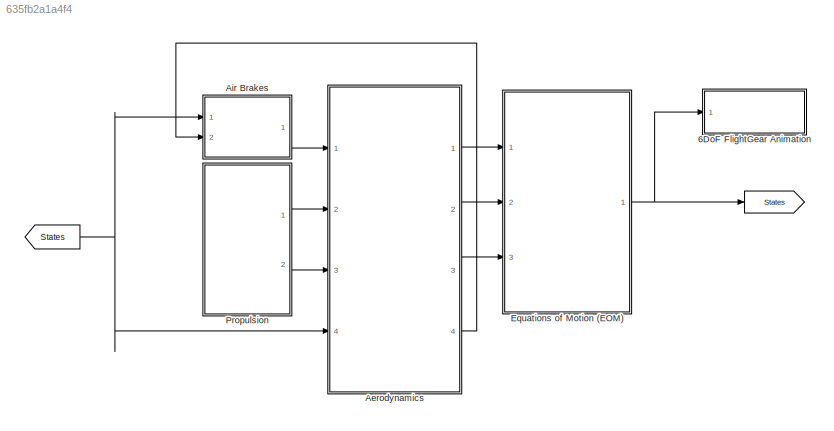
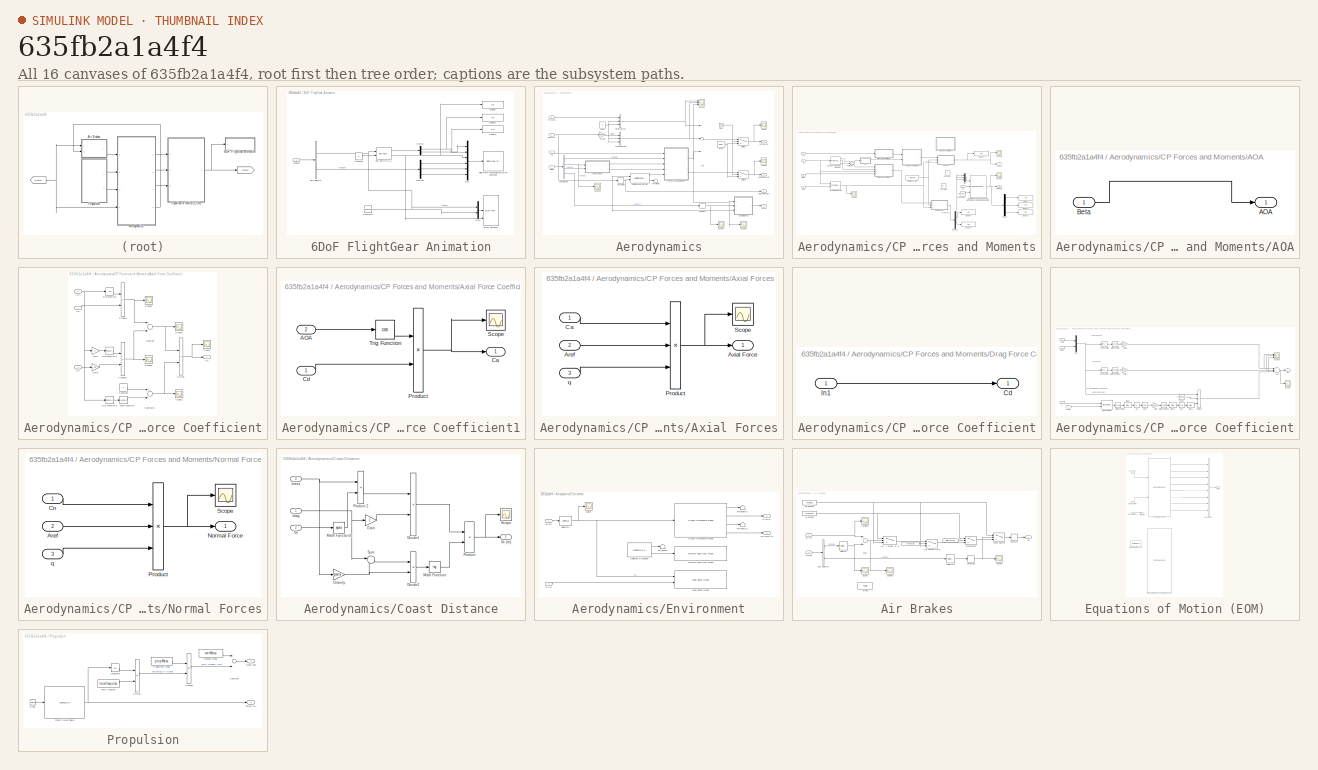
[diagram: thumbnail index - all 16 canvases of the model, root first then tree order]
MODEL slx_635fb2a1a4f4
KIND model
CONFIG AbsTol = auto
CONFIG FixedStep = auto
CONFIG MaxStep = auto
CONFIG MinStep = auto
CONFIG RelTol = 1e-3
CONFIG SampleTimeConstraint = Unconstrained
CONFIG Solver = ode45
CONFIG SolverMode = Auto
CONFIG SolverName = ode45
CONFIG StartTime = 0.0
CONFIG StopTime = 120
WORKSPACE source: MAT-file member
WORKSPACE rocketDiam = 0.197
BLOCK [Goto]  
  GotoTag = States
BLOCK [From]   
  GotoTag = States
BLOCK [SubSystem] 6DoF FlightGear Animation
  Ports = [1]
  RequestExecContextInheritance = off
BLOCK [Reference] 6DoF FlightGear Animation/3DoF Animation  REF=aerospace/Animation/3DoF Animation  (lib defined in mdl_cf564d925549, slx_1354fe9238a2, +3 more)
  Ports = [3]
  SourceBlock = aerospace/Animation/3DoF Animation
  SourceType = 3DoF Animation
  u1 = [0 5000 -2000 2000 -5050 -3050]
  u2 = 0.03
  u3 = 1.8
  u5 = Fly alongside
  u6 = [200 200 -50]
  u7 = 20
  u8 = on
BLOCK [BusSelector] 6DoF FlightGear Animation/Bus Selector
  OutputSignals = signal1,signal3
  Ports = [1, 2]
BLOCK [Constant] 6DoF FlightGear Animation/Constant
  Value = 0
BLOCK [Constant] 6DoF FlightGear Animation/Constant1
  Value = [0 3500 0]
BLOCK [Demux] 6DoF FlightGear Animation/Demux
  DisplayOption = bar
  Outputs = 2
  Ports = [1, 2]
BLOCK [Demux] 6DoF FlightGear Animation/Demux1
  DisplayOption = bar
  Outputs = 3
  Ports = [1, 3]
BLOCK [Display] 6DoF FlightGear Animation/Display
  Decimation = 1
  Ports = [1]
BLOCK [Display] 6DoF FlightGear Animation/Display1
  Decimation = 1
  Ports = [1]
BLOCK [Display] 6DoF FlightGear Animation/Display2
  Decimation = 1
  Ports = [1]
BLOCK [Reference] 6DoF FlightGear Animation/Flat Earth to LLA  REF=aerolibtransform2/Flat Earth to LLA
  F = 1/298.257223563
  LL0 = [0 10]
  Ports = [2, 2]
  R = 6378137
  SourceBlock = aerolibtransform2/Flat Earth to LLA
  SourceType = Flat Earth to LLA
  psi = 0
  ptype = Earth (WGS84)
  units = Metric (MKS)
BLOCK [Reference] 6DoF FlightGear Animation/FlightGear Preconfigured 6DoF Animation  REF=aerolibfltsims/FlightGear
Preconfigured
6DoF Animation
  AttributesFormatString = Version Selected: %<xFlightGearVersion>
  DestinationIpAddress = 127.0.0.1
  DestinationPort = 5502
  Ports = [1]
  SampleTime = 1/30
  SourceBlock = aerolibfltsims/FlightGear\nPreconfigured\n6DoF Animation
  SourceType = FlightGearQuick6DoFAnimation
  xFlightGearVersion = v3.0
BLOCK [Mux] 6DoF FlightGear Animation/Mux
  DisplayOption = bar
  Inputs = 6
  Ports = [6, 1]
BLOCK [Mux] 6DoF FlightGear Animation/Mux1
  DisplayOption = bar
  Inputs = 2
  Ports = [2, 1]
BLOCK [Inport] 6DoF FlightGear Animation/States
  IconDisplay = Port number
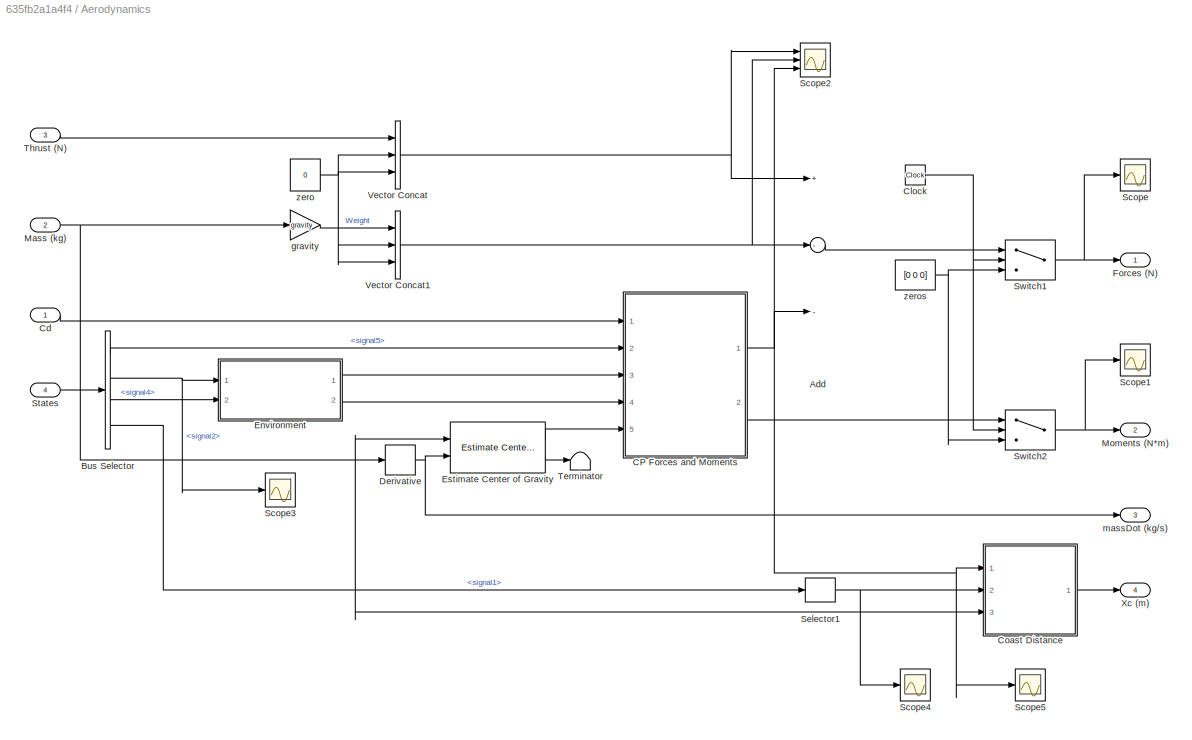
BLOCK [SubSystem] Aerodynamics
  Ports = [4, 4]
  RequestExecContextInheritance = off
BLOCK [Sum] Aerodynamics/Add
  InputSameDT = off
  Inputs = +--
  OutDataTypeStr = Inherit: Inherit via internal rule
  Ports = [3, 1]
  SaturateOnIntegerOverflow = off
BLOCK [BusSelector] Aerodynamics/Bus Selector
  OutputSignals = signal5,signal2,signal4,signal1
  Ports = [1, 4]
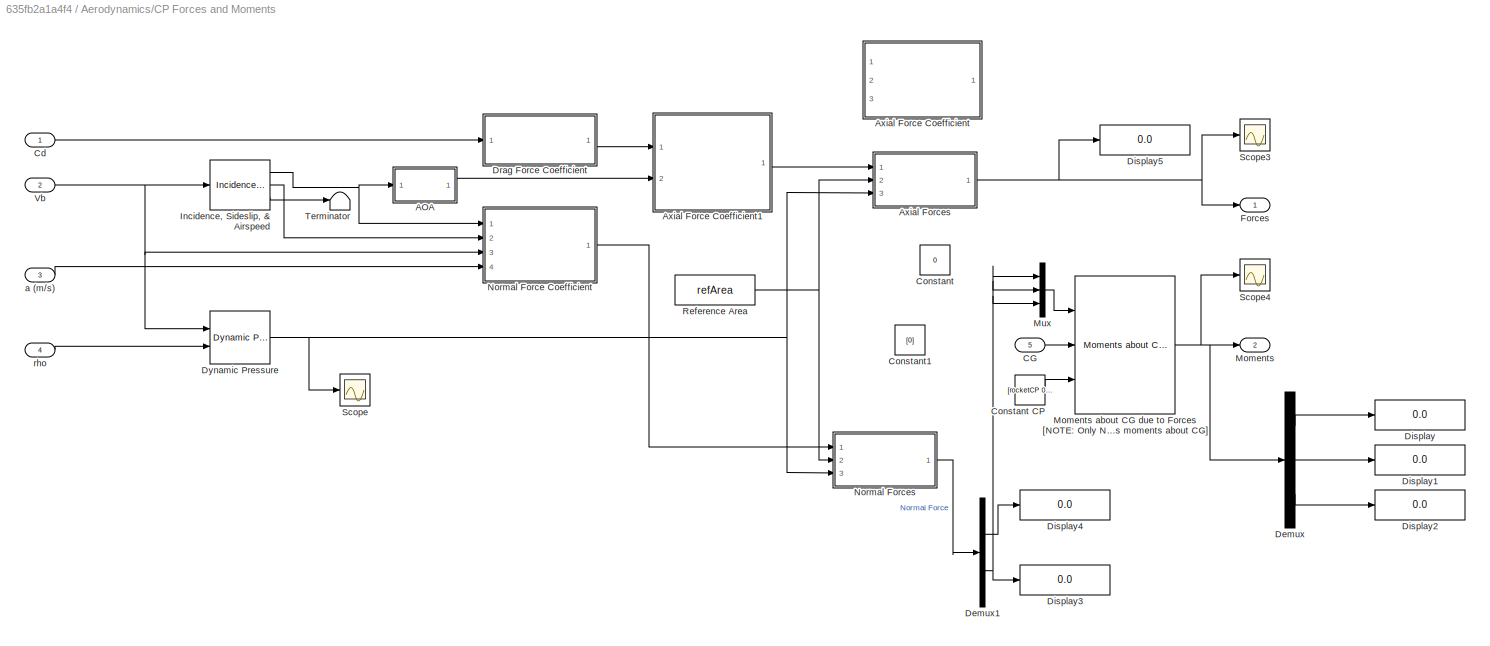
BLOCK [SubSystem] Aerodynamics/CP Forces and Moments
  Ports = [5, 2]
  RequestExecContextInheritance = off
BLOCK [SubSystem] Aerodynamics/CP Forces and Moments/AOA
  Ports = [1, 1]
  RequestExecContextInheritance = off
BLOCK [Outport] Aerodynamics/CP Forces and Moments/AOA/AOA
  IconDisplay = Port number
BLOCK [Inport] Aerodynamics/CP Forces and Moments/AOA/Beta
  IconDisplay = Port number
BLOCK [SubSystem] Aerodynamics/CP Forces and Moments/Axial Force Coefficient
  Commented = on
  Ports = [3, 1]
  RequestExecContextInheritance = off
BLOCK [Inport] Aerodynamics/CP Forces and Moments/Axial Force Coefficient/AOA
  IconDisplay = Port number
  Port = 3
BLOCK [Outport] Aerodynamics/CP Forces and Moments/Axial Force Coefficient/Ca
  IconDisplay = Port number
BLOCK [Inport] Aerodynamics/CP Forces and Moments/Axial Force Coefficient/Cd
  IconDisplay = Port number
BLOCK [Inport] Aerodynamics/CP Forces and Moments/Axial Force Coefficient/Cn
  IconDisplay = Port number
  Port = 2
BLOCK [Constant] Aerodynamics/CP Forces and Moments/Axial Force Coefficient/Constant
BLOCK [Product] Aerodynamics/CP Forces and Moments/Axial Force Coefficient/Divide
  InputSameDT = off
  Inputs = */
  OutDataTypeStr = Inherit: Inherit via internal rule
  Ports = [2, 1]
  RndMeth = Floor
  SaturateOnIntegerOverflow = off
BLOCK [Gain] Aerodynamics/CP Forces and Moments/Axial Force Coefficient/Gain
  Gain = 2
  OutDataTypeStr = Inherit: Inherit via internal rule
  ParamDataTypeStr = Inherit: Inherit via internal rule
  SaturateOnIntegerOverflow = off
BLOCK [Gain] Aerodynamics/CP Forces and Moments/Axial Force Coefficient/Gain1
  Gain = 0.5
  OutDataTypeStr = Inherit: Inherit via internal rule
  ParamDataTypeStr = Inherit: Inherit via internal rule
  SaturateOnIntegerOverflow = off
BLOCK [Math] Aerodynamics/CP Forces and Moments/Axial Force Coefficient/Math Function
  Operator = square
  Ports = [1, 1]
BLOCK [Product] Aerodynamics/CP Forces and Moments/Axial Force Coefficient/Product
  InputSameDT = off
  OutDataTypeStr = Inherit: Inherit via internal rule
  Ports = [2, 1]
  RndMeth = Floor
  SaturateOnIntegerOverflow = off
BLOCK [Product] Aerodynamics/CP Forces and Moments/Axial Force Coefficient/Product1
  InputSameDT = off
  OutDataTypeStr = Inherit: Inherit via internal rule
  Ports = [2, 1]
  RndMeth = Floor
  SaturateOnIntegerOverflow = off
BLOCK [Scope] Aerodynamics/CP Forces and Moments/Axial Force Coefficient/Scope
  Floating = off
  NumInputPorts = 1
  Ports = [1]
  SaveName = ScopeData5
BLOCK [Scope] Aerodynamics/CP Forces and Moments/Axial Force Coefficient/Scope1
  Floating = off
  NumInputPorts = 1
  Ports = [1]
  SaveName = ScopeData13
BLOCK [Scope] Aerodynamics/CP Forces and Moments/Axial Force Coefficient/Scope2
  Floating = off
  NumInputPorts = 1
  Ports = [1]
  SaveName = ScopeData15
BLOCK [Scope] Aerodynamics/CP Forces and Moments/Axial Force Coefficient/Scope3
  Floating = off
  NumInputPorts = 1
  Ports = [1]
  SaveName = ScopeData16
BLOCK [Scope] Aerodynamics/CP Forces and Moments/Axial Force Coefficient/Scope4
  Floating = off
  NumInputPorts = 1
  Ports = [1]
  SaveName = ScopeData17
BLOCK [Sum] Aerodynamics/CP Forces and Moments/Axial Force Coefficient/Subtract
  InputSameDT = off
  Inputs = +-
  OutDataTypeStr = Inherit: Inherit via internal rule
  Ports = [2, 1]
  SaturateOnIntegerOverflow = off
BLOCK [Sum] Aerodynamics/CP Forces and Moments/Axial Force Coefficient/Subtract1
  InputSameDT = off
  Inputs = +-
  OutDataTypeStr = Inherit: Inherit via internal rule
  Ports = [2, 1]
  SaturateOnIntegerOverflow = off
BLOCK [Trigonometry] Aerodynamics/CP Forces and Moments/Axial Force Coefficient/Trig Function
  Operator = cos
  Ports = [1, 1]
BLOCK [Trigonometry] Aerodynamics/CP Forces and Moments/Axial Force Coefficient/Trig Function 1
  Ports = [1, 1]
BLOCK [Trigonometry] Aerodynamics/CP Forces and Moments/Axial Force Coefficient/Trig Function 2
  Ports = [1, 1]
BLOCK [SubSystem] Aerodynamics/CP Forces and Moments/Axial Force Coefficient1
  Ports = [2, 1]
  RequestExecContextInheritance = off
BLOCK [Inport] Aerodynamics/CP Forces and Moments/Axial Force Coefficient1/AOA
  IconDisplay = Port number
  Port = 2
BLOCK [Outport] Aerodynamics/CP Forces and Moments/Axial Force Coefficient1/Ca
  IconDisplay = Port number
BLOCK [Inport] Aerodynamics/CP Forces and Moments/Axial Force Coefficient1/Cd
  IconDisplay = Port number
BLOCK [Product] Aerodynamics/CP Forces and Moments/Axial Force Coefficient1/Product
  InputSameDT = off
  OutDataTypeStr = Inherit: Inherit via internal rule
  Ports = [2, 1]
  RndMeth = Floor
  SaturateOnIntegerOverflow = off
BLOCK [Scope] Aerodynamics/CP Forces and Moments/Axial Force Coefficient1/Scope
  Floating = off
  NumInputPorts = 1
  Ports = [1]
  SaveName = ScopeData15
BLOCK [Trigonometry] Aerodynamics/CP Forces and Moments/Axial Force Coefficient1/Trig Function
  Operator = cos
  Ports = [1, 1]
BLOCK [SubSystem] Aerodynamics/CP Forces and Moments/Axial Forces
  Ports = [3, 1]
  RequestExecContextInheritance = off
BLOCK [Inport] Aerodynamics/CP Forces and Moments/Axial Forces/Aref
  IconDisplay = Port number
  Port = 2
BLOCK [Outport] Aerodynamics/CP Forces and Moments/Axial Forces/Axial Force
  IconDisplay = Port number
BLOCK [Inport] Aerodynamics/CP Forces and Moments/Axial Forces/Ca
  IconDisplay = Port number
BLOCK [Product] Aerodynamics/CP Forces and Moments/Axial Forces/Product
  InputSameDT = off
  Inputs = 3
  OutDataTypeStr = Inherit: Inherit via internal rule
  Ports = [3, 1]
  RndMeth = Floor
  SaturateOnIntegerOverflow = off
BLOCK [Scope] Aerodynamics/CP Forces and Moments/Axial Forces/Scope
  Floating = off
  NumInputPorts = 1
  Ports = [1]
  SaveName = ScopeData6
  TimeRange = 10
  YMax = 0
  YMin = -100000000
BLOCK [Inport] Aerodynamics/CP Forces and Moments/Axial Forces/q 
  IconDisplay = Port number
  Port = 3
BLOCK [Inport] Aerodynamics/CP Forces and Moments/CG
  IconDisplay = Port number
  Port = 5
BLOCK [Inport] Aerodynamics/CP Forces and Moments/Cd
  IconDisplay = Port number
BLOCK [Constant] Aerodynamics/CP Forces and Moments/Constant
  Value = 0
BLOCK [Constant] Aerodynamics/CP Forces and Moments/Constant CP
  Value = [rocketCP 0 0]
BLOCK [Constant] Aerodynamics/CP Forces and Moments/Constant1
  Value = [0]
BLOCK [Demux] Aerodynamics/CP Forces and Moments/Demux
  DisplayOption = bar
  Outputs = 3
  Ports = [1, 3]
BLOCK [Demux] Aerodynamics/CP Forces and Moments/Demux1
  DisplayOption = bar
  Outputs = 2
  Ports = [1, 2]
BLOCK [Display] Aerodynamics/CP Forces and Moments/Display
  Decimation = 1
  Ports = [1]
BLOCK [Display] Aerodynamics/CP Forces and Moments/Display1
  Decimation = 1
  Ports = [1]
BLOCK [Display] Aerodynamics/CP Forces and Moments/Display2
  Decimation = 1
  Ports = [1]
BLOCK [Display] Aerodynamics/CP Forces and Moments/Display3
  Decimation = 1
  Ports = [1]
BLOCK [Display] Aerodynamics/CP Forces and Moments/Display4
  Decimation = 1
  Ports = [1]
BLOCK [Display] Aerodynamics/CP Forces and Moments/Display5
  Decimation = 1
  Ports = [1]
BLOCK [SubSystem] Aerodynamics/CP Forces and Moments/Drag Force Coefficient
  Ports = [1, 1]
  RequestExecContextInheritance = off
BLOCK [Outport] Aerodynamics/CP Forces and Moments/Drag Force Coefficient/Cd
  IconDisplay = Port number
BLOCK [Inport] Aerodynamics/CP Forces and Moments/Drag Force Coefficient/In1
  IconDisplay = Port number
BLOCK [Reference] Aerodynamics/CP Forces and Moments/Dynamic Pressure  REF=aerolibasang/Dynamic Pressure
  Ports = [2, 1]
  SourceBlock = aerolibasang/Dynamic Pressure
  SourceType = Dynamic Pressure
BLOCK [Outport] Aerodynamics/CP Forces and Moments/Forces
  IconDisplay = Port number
BLOCK [Reference] Aerodynamics/CP Forces and Moments/Incidence, Sideslip, & Airspeed  REF=aerolibasang/Incidence, Sideslip,
& Airspeed
  Ports = [1, 3]
  SourceBlock = aerolibasang/Incidence, Sideslip,\n& Airspeed
  SourceType = Incidence,Sideslip,&Airspeed
BLOCK [Outport] Aerodynamics/CP Forces and Moments/Moments
  IconDisplay = Port number
  Port = 2
BLOCK [Reference] Aerodynamics/CP Forces and Moments/Moments about CG due to Forces [NOTE: Only Normal Force applys moments about CG]  REF=aerolibbdyn/Moments about CG 
due to Forces
  Ports = [3, 1]
  SourceBlock = aerolibbdyn/Moments about CG \ndue to Forces
  SourceType = Moments About CG Due To Forces
BLOCK [Mux] Aerodynamics/CP Forces and Moments/Mux
  DisplayOption = bar
  Inputs = 3
  Ports = [3, 1]
BLOCK [SubSystem] Aerodynamics/CP Forces and Moments/Normal Force Coefficient
  Ports = [4, 1]
  RequestExecContextInheritance = off
BLOCK [Abs] Aerodynamics/CP Forces and Moments/Normal Force Coefficient/Abs
  SaturateOnIntegerOverflow = off
BLOCK [Sum] Aerodynamics/CP Forces and Moments/Normal Force Coefficient/Add
  InputSameDT = off
  Inputs = +++
  OutDataTypeStr = Inherit: Inherit via internal rule
  Ports = [3, 1]
  SaturateOnIntegerOverflow = off
BLOCK [Bias] Aerodynamics/CP Forces and Moments/Normal Force Coefficient/Bias1
  Bias = 1
  SaturateOnIntegerOverflow = off
BLOCK [Bias] Aerodynamics/CP Forces and Moments/Normal Force Coefficient/Bias2
  Bias = -1
  SaturateOnIntegerOverflow = off
BLOCK [Bias] Aerodynamics/CP Forces and Moments/Normal Force Coefficient/Bias3
  Bias = 1
  SaturateOnIntegerOverflow = off
BLOCK [Outport] Aerodynamics/CP Forces and Moments/Normal Force Coefficient/Cn
  IconDisplay = Port number
BLOCK [Constant] Aerodynamics/CP Forces and Moments/Normal Force Coefficient/Const
  Value = 2*pi*finSpan^2
BLOCK [Product] Aerodynamics/CP Forces and Moments/Normal Force Coefficient/Divide2
  InputSameDT = off
  Inputs = **/
  OutDataTypeStr = Inherit: Inherit via internal rule
  Ports = [3, 1]
  RndMeth = Floor
  SaturateOnIntegerOverflow = off
BLOCK [Reference] Aerodynamics/CP Forces and Moments/Normal Force Coefficient/Mach Number  REF=aerolibasang/Mach Number
  Ports = [2, 1]
  SourceBlock = aerolibasang/Mach Number
  SourceType = Mach Number
BLOCK [Math] Aerodynamics/CP Forces and Moments/Normal Force Coefficient/Math Function
  Operator = square
  Ports = [1, 1]
BLOCK [Math] Aerodynamics/CP Forces and Moments/Normal Force Coefficient/Math Function1
  Operator = square
  Ports = [1, 1]
BLOCK [Math] Aerodynamics/CP Forces and Moments/Normal Force Coefficient/Math Function2
  Operator = square
  Ports = [1, 1]
BLOCK [Math] Aerodynamics/CP Forces and Moments/Normal Force Coefficient/Math Function3
  Operator = square
  Ports = [1, 1]
BLOCK [Mux] Aerodynamics/CP Forces and Moments/Normal Force Coefficient/Mux
  DisplayOption = bar
  Inputs = 2
  Ports = [2, 1]
BLOCK [Scope] Aerodynamics/CP Forces and Moments/Normal Force Coefficient/Scope
  Floating = off
  NumInputPorts = 1
  Ports = [1]
  SaveName = ScopeData1
  ZoomMode = xonly
BLOCK [Scope] Aerodynamics/CP Forces and Moments/Normal Force Coefficient/Scope2
  Floating = off
  NumInputPorts = 3
  Ports = [3]
  SaveName = ScopeData3
  YMax = 5~5~5
  YMin = -5~-5~-5
  ZoomMode = xonly
BLOCK [Sqrt] Aerodynamics/CP Forces and Moments/Normal Force Coefficient/Sqrt
BLOCK [Sqrt] Aerodynamics/CP Forces and Moments/Normal Force Coefficient/Sqrt1
BLOCK [Trigonometry] Aerodynamics/CP Forces and Moments/Normal Force Coefficient/Trig Function
  Ports = [1, 1]
BLOCK [Trigonometry] Aerodynamics/CP Forces and Moments/Normal Force Coefficient/Trig Function1
  Ports = [1, 1]
BLOCK [Inport] Aerodynamics/CP Forces and Moments/Normal Force Coefficient/V
  IconDisplay = Port number
  Port = 3
BLOCK [Inport] Aerodynamics/CP Forces and Moments/Normal Force Coefficient/a (m//s)
  IconDisplay = Port number
  Port = 4
BLOCK [Inport] Aerodynamics/CP Forces and Moments/Normal Force Coefficient/alpha
  IconDisplay = Port number
BLOCK [Inport] Aerodynamics/CP Forces and Moments/Normal Force Coefficient/beta
  IconDisplay = Port number
  Port = 2
BLOCK [Gain] Aerodynamics/CP Forces and Moments/Normal Force Coefficient/gain
  Gain = finSpan^2/(finArea*cos(finChordAngle))
  OutDataTypeStr = Inherit: Inherit via internal rule
  ParamDataTypeStr = Inherit: Inherit via internal rule
  SaturateOnIntegerOverflow = off
BLOCK [Gain] Aerodynamics/CP Forces and Moments/Normal Force Coefficient/gain1
  Gain = (noseLength*rocketDiam*1.1)
  OutDataTypeStr = Inherit: Inherit via internal rule
  ParamDataTypeStr = Inherit: Inherit via internal rule
  SaturateOnIntegerOverflow = off
BLOCK [Gain] Aerodynamics/CP Forces and Moments/Normal Force Coefficient/gain2
  Gain = (bodyLength*rocketDiam*1.1)
  OutDataTypeStr = Inherit: Inherit via internal rule
  ParamDataTypeStr = Inherit: Inherit via internal rule
  SaturateOnIntegerOverflow = off
BLOCK [SubSystem] Aerodynamics/CP Forces and Moments/Normal Forces
  Ports = [3, 1]
  RequestExecContextInheritance = off
BLOCK [Inport] Aerodynamics/CP Forces and Moments/Normal Forces/Aref
  IconDisplay = Port number
  Port = 2
BLOCK [Inport] Aerodynamics/CP Forces and Moments/Normal Forces/Cn
  IconDisplay = Port number
BLOCK [Outport] Aerodynamics/CP Forces and Moments/Normal Forces/Normal Force
  IconDisplay = Port number
BLOCK [Product] Aerodynamics/CP Forces and Moments/Normal Forces/Product
  InputSameDT = off
  Inputs = 3
  OutDataTypeStr = Inherit: Inherit via internal rule
  Ports = [3, 1]
  RndMeth = Floor
  SaturateOnIntegerOverflow = off
BLOCK [Scope] Aerodynamics/CP Forces and Moments/Normal Forces/Scope
  Floating = off
  NumInputPorts = 1
  Ports = [1]
  SaveName = ScopeData6
  TimeRange = 10
  YMax = 0
  YMin = -100000000
BLOCK [Inport] Aerodynamics/CP Forces and Moments/Normal Forces/q 
  IconDisplay = Port number
  Port = 3
BLOCK [Constant] Aerodynamics/CP Forces and Moments/Reference Area
  Value = refArea
BLOCK [Scope] Aerodynamics/CP Forces and Moments/Scope
  Floating = off
  NumInputPorts = 1
  Ports = [1]
  SaveName = ScopeData9
BLOCK [Scope] Aerodynamics/CP Forces and Moments/Scope3
  Floating = off
  NumInputPorts = 1
  Ports = [1]
  SaveName = ScopeData7
  ZoomMode = xonly
BLOCK [Scope] Aerodynamics/CP Forces and Moments/Scope4
  Floating = off
  NumInputPorts = 1
  Ports = [1]
  SaveName = ScopeData8
  ZoomMode = xonly
BLOCK [Terminator] Aerodynamics/CP Forces and Moments/Terminator
BLOCK [Inport] Aerodynamics/CP Forces and Moments/Vb
  IconDisplay = Port number
  Port = 2
BLOCK [Inport] Aerodynamics/CP Forces and Moments/a (m//s)
  IconDisplay = Port number
  Port = 3
BLOCK [Inport] Aerodynamics/CP Forces and Moments/rho
  IconDisplay = Port number
  Port = 4
BLOCK [Inport] Aerodynamics/Cd
  IconDisplay = Port number
BLOCK [Clock] Aerodynamics/Clock
BLOCK [SubSystem] Aerodynamics/Coast Distance
  Ports = [3, 1]
  RequestExecContextInheritance = off
BLOCK [Product] Aerodynamics/Coast Distance/Divide1
  InputSameDT = off
  Inputs = */
  OutDataTypeStr = Inherit: Inherit via internal rule
  Ports = [2, 1]
  RndMeth = Floor
  SaturateOnIntegerOverflow = off
BLOCK [Product] Aerodynamics/Coast Distance/Divide2
  InputSameDT = off
  Inputs = */
  OutDataTypeStr = Inherit: Inherit via internal rule
  Ports = [2, 1]
  RndMeth = Floor
  SaturateOnIntegerOverflow = off
BLOCK [Gain] Aerodynamics/Coast Distance/Gain
  Gain = 2
  OutDataTypeStr = Inherit: Inherit via internal rule
  ParamDataTypeStr = Inherit: Inherit via internal rule
  SaturateOnIntegerOverflow = off
BLOCK [Gain] Aerodynamics/Coast Distance/Gravity
  Gain = gravity
  OutDataTypeStr = Inherit: Inherit via internal rule
  ParamDataTypeStr = Inherit: Inherit via internal rule
  SaturateOnIntegerOverflow = off
BLOCK [Math] Aerodynamics/Coast Distance/Math Function
  Operator = log
  Ports = [1, 1]
BLOCK [Math] Aerodynamics/Coast Distance/Math Function1
  Operator = square
  Ports = [1, 1]
BLOCK [Product] Aerodynamics/Coast Distance/Product
  InputSameDT = off
  OutDataTypeStr = Inherit: Inherit via internal rule
  Ports = [2, 1]
  RndMeth = Floor
  SaturateOnIntegerOverflow = off
BLOCK [Product] Aerodynamics/Coast Distance/Product 2
  InputSameDT = off
  Inputs = **
  OutDataTypeStr = Inherit: Inherit via internal rule
  Ports = [2, 1]
  RndMeth = Floor
  SaturateOnIntegerOverflow = off
BLOCK [Scope] Aerodynamics/Coast Distance/Scope
  Floating = off
  NumInputPorts = 1
  Ports = [1]
  SaveName = ScopeData50
BLOCK [Sum] Aerodynamics/Coast Distance/Sum
  IconShape = round
  InputSameDT = off
  Inputs = |++
  OutDataTypeStr = Inherit: Inherit via internal rule
  Ports = [2, 1]
  SaturateOnIntegerOverflow = off
BLOCK [Inport] Aerodynamics/Coast Distance/Ve
  IconDisplay = Port number
  Port = 2
BLOCK [Outport] Aerodynamics/Coast Distance/Xc (m)
  IconDisplay = Port number
BLOCK [Inport] Aerodynamics/Coast Distance/drag
  IconDisplay = Port number
BLOCK [Inport] Aerodynamics/Coast Distance/mass
  IconDisplay = Port number
  Port = 3
BLOCK [Derivative] Aerodynamics/Derivative
BLOCK [SubSystem] Aerodynamics/Environment
  Ports = [2, 2]
  RequestExecContextInheritance = off
BLOCK [Reference] Aerodynamics/Environment/COESA Atmosphere Model  REF=aerolibatmos2/COESA Atmosphere Model
  Ports = [1, 4]
  SourceBlock = aerolibatmos2/COESA Atmosphere Model
  SourceType = Atmosphere Model
  action = Warning
  envelope_percent = 1%
  envelope_var = High temperature
  model = Profile
  profile_alt = 5 km (16404 ft)
  profile_percent = 1%
  profile_var = High temperature
  spec = 1976 COESA-extended U.S. Standard Atmosphere
  units = Metric (MKS)
BLOCK [Inport] Aerodynamics/Environment/DCM
  IconDisplay = Port number
  Port = 2
BLOCK [Reference] Aerodynamics/Environment/Discrete Wind Gust Model  REF=aerolibwind2/Discrete Wind Gust Model
  Commented = on
  Gx = on
  Gy = on
  Gz = on
  Ports = [1, 1]
  SourceBlock = aerolibwind2/Discrete Wind Gust Model
  SourceType = Discrete Wind Gust Model
  d_m = [120 120 80]
  t_0 = 5
  units = Metric (MKS)
  v_m = [3.5 3.5 3.0]
BLOCK [Reference] Aerodynamics/Environment/Incidence & Airspeed  REF=aerolibasang/Incidence 
& Airspeed
  Commented = on
  Ports = [1, 2]
  SourceBlock = aerolibasang/Incidence \n& Airspeed
  SourceType = Incidence&Airspeed
BLOCK [Scope] Aerodynamics/Environment/Scope
  Floating = off
  NumInputPorts = 1
  Ports = [1]
  SaveName = ScopeData12
BLOCK [Selector] Aerodynamics/Environment/Selector1
  Indices = 3
  InputPortWidth = 3
  Ports = [1, 1]
BLOCK [Terminator] Aerodynamics/Environment/Terminator
  Commented = on
BLOCK [Terminator] Aerodynamics/Environment/Terminator1
BLOCK [Terminator] Aerodynamics/Environment/Terminator2
BLOCK [Reference] Aerodynamics/Environment/Wind Shear Model  REF=aerolibwind2/Wind Shear Model
  Commented = on
  Ports = [2, 1]
  SourceBlock = aerolibwind2/Wind Shear Model
  SourceType = Wind Shear Model
  W_20 = 15
  Wdeg = 0
  phase = Category C - Terminal Flight Phase
  units = Metric (MKS)
BLOCK [Inport] Aerodynamics/Environment/Xe (m)
  IconDisplay = Port number
BLOCK [Outport] Aerodynamics/Environment/a (m//s)
  IconDisplay = Port number
BLOCK [Outport] Aerodynamics/Environment/rho (kg//m^3)
  IconDisplay = Port number
  Port = 2
BLOCK [Reference] Aerodynamics/Estimate Center of Gravity  REF=aerolibbdyn/Estimate
Center of Gravity
  Ports = [2, 2]
  SourceBlock = aerolibbdyn/Estimate\nCenter of Gravity
  SourceType = Estimate Center of Gravity
  ecg = [dryCG 0 0]'
  emass = dryMass
  fcg = [wetCG 0 0]'
  fmass = wetMass
BLOCK [Outport] Aerodynamics/Forces (N)
  IconDisplay = Port number
BLOCK [Inport] Aerodynamics/Mass (kg)
  IconDisplay = Port number
  Port = 2
BLOCK [Outport] Aerodynamics/Moments (N*m)
  IconDisplay = Port number
  Port = 2
BLOCK [Scope] Aerodynamics/Scope
  Floating = off
  NumInputPorts = 1
  Ports = [1]
  SaveName = ScopeData10
  YMax = 1
  YMin = -1
BLOCK [Scope] Aerodynamics/Scope1
  Floating = off
  NumInputPorts = 1
  Ports = [1]
  SaveName = ScopeData11
BLOCK [Scope] Aerodynamics/Scope2
  Floating = off
  NumInputPorts = 3
  Ports = [3]
  SaveName = ScopeData14
  YMax = 5~5~5
  YMin = -5~-5~-5
BLOCK [Scope] Aerodynamics/Scope3
  Floating = off
  NumInputPorts = 1
  Ports = [1]
  SaveName = ScopeData18
  ZoomMode = yonly
BLOCK [Scope] Aerodynamics/Scope4
  Floating = off
  NumInputPorts = 1
  Ports = [1]
  SaveName = ScopeData20
BLOCK [Scope] Aerodynamics/Scope5
  Floating = off
  NumInputPorts = 1
  Ports = [1]
  SaveName = ScopeData21
BLOCK [Selector] Aerodynamics/Selector1
  InputPortWidth = 3
  Ports = [1, 1]
BLOCK [Inport] Aerodynamics/States
  IconDisplay = Port number
  Port = 4
BLOCK [Switch] Aerodynamics/Switch1
  Criteria = u2 > Threshold
  InputSameDT = off
  SaturateOnIntegerOverflow = off
  Threshold = 0.0
BLOCK [Switch] Aerodynamics/Switch2
  Criteria = u2 > Threshold
  InputSameDT = off
  SaturateOnIntegerOverflow = off
  Threshold = 0.0
BLOCK [Terminator] Aerodynamics/Terminator
BLOCK [Inport] Aerodynamics/Thrust (N)
  IconDisplay = Port number
  Port = 3
BLOCK [Concatenate] Aerodynamics/Vector Concat
  NumInputs = 3
  Ports = [3, 1]
BLOCK [Concatenate] Aerodynamics/Vector Concat1
  NumInputs = 3
  Ports = [3, 1]
BLOCK [Outport] Aerodynamics/Xc (m)
  IconDisplay = Port number
  Port = 4
BLOCK [Gain] Aerodynamics/gravity
  Gain = gravity
  OutDataTypeStr = Inherit: Inherit via internal rule
  ParamDataTypeStr = Inherit: Inherit via internal rule
  SaturateOnIntegerOverflow = off
BLOCK [Outport] Aerodynamics/massDot (kg//s)
  IconDisplay = Port number
  Port = 3
BLOCK [Constant] Aerodynamics/zero 
  Value = 0
BLOCK [Constant] Aerodynamics/zeros 
  Value = [0 0 0]
BLOCK [SubSystem] Air Brakes
  Ports = [2, 1]
  RequestExecContextInheritance = off
BLOCK [Constant] Air Brakes/ 
  Value = fullBrakesOn
BLOCK [Constant] Air Brakes/  
  Value = brakesOn
BLOCK [Constant] Air Brakes/Air Brakes
  Value = brakesCd
BLOCK [BusSelector] Air Brakes/Bus Selector
  OutputSignals = signal2,signal1
  Ports = [1, 2]
BLOCK [Outport] Air Brakes/Cd 
  IconDisplay = Port number
BLOCK [Derivative] Air Brakes/Derivative
BLOCK [Memory] Air Brakes/Memory
BLOCK [Constant] Air Brakes/No Brakes
  Value = vehicleCd
BLOCK [Scope] Air Brakes/Scope
  Floating = off
  NumInputPorts = 1
  Ports = [1]
  SaveName = ScopeData4
  TimeRange = 0.6678756958057797
  YMax = 3055.870394376453
  YMin = 3027.687329665507
BLOCK [Scope] Air Brakes/Scope1
  Floating = off
  NumInputPorts = 1
  Ports = [1]
  SaveName = ScopeData19
  TimeRange = 19
  YMax = 325
  YMin = 0
BLOCK [Scope] Air Brakes/Scope2
  Floating = off
  NumInputPorts = 1
  Ports = [1]
  SaveName = ScopeData2
  TimeRange = 19
  YMax = 3000
  YMin = 0
BLOCK [Scope] Air Brakes/Scope3
  Floating = off
  NumInputPorts = 1
  Ports = [1]
  SaveName = ScopeData22
  TimeRange = 19
  YMax = 2000
  YMin = 0
BLOCK [Selector] Air Brakes/Selector 
  InputPortWidth = 3
  Ports = [1, 1]
BLOCK [Selector] Air Brakes/Selector1
  InputPortWidth = 3
  Ports = [1, 1]
BLOCK [Inport] Air Brakes/States
  IconDisplay = Port number
BLOCK [Sum] Air Brakes/Sum
  InputSameDT = off
  OutDataTypeStr = Inherit: Inherit via internal rule
  Ports = [2, 1]
  SaturateOnIntegerOverflow = off
BLOCK [ToFile] Air Brakes/To File
  Commented = on
  Filename = altitude.mat
  Ports = [1]
  SaveFormat = Timeseries
BLOCK [Inport] Air Brakes/Xc (m)
  IconDisplay = Port number
  Port = 2
BLOCK [Switch] Air Brakes/[Air Brakes On?]
  Criteria = u2 > Threshold
  Description = [Air Brakes On?]
  InputSameDT = off
  SaturateOnIntegerOverflow = off
BLOCK [Switch] Air Brakes/[Alt. > Target Alt.?]
  Criteria = u2 > Threshold
  InputSameDT = off
  SaturateOnIntegerOverflow = off
  Threshold = targetAlt
BLOCK [Switch] Air Brakes/[Full Brake?]
  Criteria = u2 > Threshold
  InputSameDT = off
  SaturateOnIntegerOverflow = off
BLOCK [Switch] Air Brakes/[Post Burn?]
  Criteria = u2 > Threshold
  InputSameDT = off
  SaturateOnIntegerOverflow = off
BLOCK [SubSystem] Equations of Motion (EOM)
  Ports = [3, 1]
  RequestExecContextInheritance = off
BLOCK [Reference] Equations of Motion (EOM)/6DOF (Euler Angles)  REF=aerolib6dof2/6DOF (Euler Angles)
  Ports = [2, 8]
  SourceBlock = aerolib6dof2/6DOF (Euler Angles)
  SourceType = 6DOF EoM (Body Axis)
  Vm_0 = [0 0 0]
  eul_0 = [0 0 0]
  inertia = eye(3)
  inertia_e = eye(3)
  inertia_f = 2*eye(3)
  k_quat = 1.0
  mass_0 = 30
  mass_e = 0.5
  mass_f = 2.0
  mtype = Fixed
  pm_0 = [0, 0, 0]
  rep = Euler Angles
  units = Metric (MKS)
  vre_flag = on
  xme_0 = [0 0 0]
BLOCK [BusCreator] Equations of Motion (EOM)/Bus Creator
  DisplayOption = bar
  Inputs = 8
  Ports = [8, 1]
BLOCK [Reference] Equations of Motion (EOM)/Estimate Inertia Tensor  REF=aerolibbdyn/Estimate
Inertia Tensor
  Commented = on
  Ports = [2, 2]
  SourceBlock = aerolibbdyn/Estimate\nInertia Tensor
  SourceType = Estimate Inertia Tensor
  eI = eye(3)/2
  emass = 1
  fI = eye(3)
  fmass = 2
BLOCK [Inport] Equations of Motion (EOM)/Forces (N)
  IconDisplay = Port number
BLOCK [Inport] Equations of Motion (EOM)/Moments (N*m)
  IconDisplay = Port number
  Port = 2
BLOCK [Reference] Equations of Motion (EOM)/Simple Variable Mass 6DOF (Euler Angles)  REF=aerolib6dof2/6DOF (Euler Angles)
  Commented = on
  Ports = [3, 9]
  SourceBlock = aerolib6dof2/6DOF (Euler Angles)
  SourceType = 6DOF EoM (Body Axis)
  Vm_0 = [0 0 0]
  eul_0 = [0 0 0]
  inertia = eye(3)
  inertia_e = eye(3)
  inertia_f = 2*eye(3)
  k_quat = 1.0
  mass_0 = 1.0
  mass_e = 0.5
  mass_f = 2.0
  mtype = Simple Variable
  pm_0 = [0 0 0]
  rep = Euler Angles
  units = Metric (MKS)
  vre_flag = off
  xme_0 = [0 0 0]
BLOCK [Outport] Equations of Motion (EOM)/States
  IconDisplay = Port number
BLOCK [Terminator] Equations of Motion (EOM)/Terminator
BLOCK [Inport] Equations of Motion (EOM)/massDot (kg//s)
  IconDisplay = Port number
  Port = 3
BLOCK [SubSystem] Propulsion
  Ports = [0, 2]
  RequestExecContextInheritance = off
BLOCK [Clock] Propulsion/Clock
  Decimation = 1
BLOCK [Product] Propulsion/Divide
  InputSameDT = off
  Inputs = */
  OutDataTypeStr = Inherit: Inherit via internal rule
  Ports = [2, 1]
  RndMeth = Floor
  SaturateOnIntegerOverflow = off
BLOCK [Integrator] Propulsion/Integrator
  Ports = [1, 1]
BLOCK [Outport] Propulsion/Mass (kg)
  IconDisplay = Port number
BLOCK [Product] Propulsion/Product
  InputSameDT = off
  OutDataTypeStr = Inherit: Inherit via internal rule
  Ports = [2, 1]
  RndMeth = Floor
  SaturateOnIntegerOverflow = off
BLOCK [Constant] Propulsion/Propellant Mass
  Value = propMass
BLOCK [Constant] Propulsion/Rocket Mass
  Value = wetMass
BLOCK [Sum] Propulsion/Subtract
  InputSameDT = off
  Inputs = +-
  OutDataTypeStr = Inherit: Inherit via internal rule
  Ports = [2, 1]
  SaturateOnIntegerOverflow = off
BLOCK [Outport] Propulsion/Thrust (N)
  IconDisplay = Port number
  Port = 2
BLOCK [Lookup_n-D] Propulsion/Thrust Curve Table
  BreakpointsForDimension1 = time
  ExtrapMethod = Clip
  InternalRulePriority = Speed
  NumberOfTableDimensions = 1
  Ports = [1, 1]
  RndMeth = Simplest
  Table = thrust
BLOCK [Constant] Propulsion/Total Impulse
  Value = totalImpulse
ANNOTATION Aerodynamics/CP Forces and Moments/Normal Force Coefficient: Beta (not the angle)
ANNOTATION Aerodynamics/CP Forces and Moments/Normal Force Coefficient: Cylindrical Tube
ANNOTATION Aerodynamics/CP Forces and Moments/Normal Force Coefficient: Normal Coefficient derivative for fins
ANNOTATION Aerodynamics/CP Forces and Moments/Normal Force Coefficient: Nosecone
NET   :1 -> Aerodynamics:4, Air Brakes:1
NET 6DoF FlightGear Animation/Bus Selector:1 -> 6DoF FlightGear Animation/Flat Earth to LLA:1, 6DoF FlightGear Animation/Mux1:1
LINE 6DoF FlightGear Animation/Bus Selector:2 -> 6DoF FlightGear Animation/Demux1:1
LINE 6DoF FlightGear Animation/Constant1:1 -> 6DoF FlightGear Animation/Mux1:2
LINE 6DoF FlightGear Animation/Constant:1 -> 6DoF FlightGear Animation/Flat Earth to LLA:2
LINE 6DoF FlightGear Animation/Demux1:1 -> 6DoF FlightGear Animation/Mux:4
LINE 6DoF FlightGear Animation/Demux1:2 -> 6DoF FlightGear Animation/Mux:5
LINE 6DoF FlightGear Animation/Demux1:3 -> 6DoF FlightGear Animation/Mux:6
NET 6DoF FlightGear Animation/Demux:1 -> 6DoF FlightGear Animation/Display1:1, 6DoF FlightGear Animation/Mux:2
NET 6DoF FlightGear Animation/Demux:2 -> 6DoF FlightGear Animation/Display2:1, 6DoF FlightGear Animation/Mux:1
LINE 6DoF FlightGear Animation/Flat Earth to LLA:1 -> 6DoF FlightGear Animation/Demux:1
NET 6DoF FlightGear Animation/Flat Earth to LLA:2 -> 6DoF FlightGear Animation/3DoF Animation:3, 6DoF FlightGear Animation/Display:1, 6DoF FlightGear Animation/Mux:3
LINE 6DoF FlightGear Animation/Mux1:1 -> 6DoF FlightGear Animation/3DoF Animation:2
LINE 6DoF FlightGear Animation/Mux:1 -> 6DoF FlightGear Animation/FlightGear Preconfigured 6DoF Animation:1
LINE 6DoF FlightGear Animation/States:1 -> 6DoF FlightGear Animation/Bus Selector:1
LINE Aerodynamics/Add:1 -> Aerodynamics/Switch1:1
LINE Aerodynamics/Bus Selector:1 -> Aerodynamics/CP Forces and Moments:2
NET Aerodynamics/Bus Selector:2 -> Aerodynamics/Environment:1, Aerodynamics/Scope3:1
LINE Aerodynamics/Bus Selector:3 -> Aerodynamics/Environment:2
LINE Aerodynamics/Bus Selector:4 -> Aerodynamics/Selector1:1
LINE Aerodynamics/CP Forces and Moments/AOA/Beta:1 -> Aerodynamics/CP Forces and Moments/AOA/AOA:1
LINE Aerodynamics/CP Forces and Moments/AOA:1 -> Aerodynamics/CP Forces and Moments/Axial Force Coefficient1:2
NET Aerodynamics/CP Forces and Moments/Axial Force Coefficient/AOA:1 -> Aerodynamics/CP Forces and Moments/Axial Force Coefficient/Gain:1, Aerodynamics/CP Forces and Moments/Axial Force Coefficient/Trig Function 2:1, Aerodynamics/CP Forces and Moments/Axial Force Coefficient/Trig Function:1
LINE Aerodynamics/CP Forces and Moments/Axial Force Coefficient/Cd:1 -> Aerodynamics/CP Forces and Moments/Axial Force Coefficient/Product:2
LINE Aerodynamics/CP Forces and Moments/Axial Force Coefficient/Cn:1 -> Aerodynamics/CP Forces and Moments/Axial Force Coefficient/Gain1:1
LINE Aerodynamics/CP Forces and Moments/Axial Force Coefficient/Constant:1 -> Aerodynamics/CP Forces and Moments/Axial Force Coefficient/Subtract1:1
NET Aerodynamics/CP Forces and Moments/Axial Force Coefficient/Divide:1 -> Aerodynamics/CP Forces and Moments/Axial Force Coefficient/Ca:1, Aerodynamics/CP Forces and Moments/Axial Force Coefficient/Scope:1
LINE Aerodynamics/CP Forces and Moments/Axial Force Coefficient/Gain1:1 -> Aerodynamics/CP Forces and Moments/Axial Force Coefficient/Product1:2
LINE Aerodynamics/CP Forces and Moments/Axial Force Coefficient/Gain:1 -> Aerodynamics/CP Forces and Moments/Axial Force Coefficient/Trig Function 1:1
LINE Aerodynamics/CP Forces and Moments/Axial Force Coefficient/Math Function:1 -> Aerodynamics/CP Forces and Moments/Axial Force Coefficient/Subtract1:2
NET Aerodynamics/CP Forces and Moments/Axial Force Coefficient/Product1:1 -> Aerodynamics/CP Forces and Moments/Axial Force Coefficient/Scope4:1, Aerodynamics/CP Forces and Moments/Axial Force Coefficient/Subtract:2
NET Aerodynamics/CP Forces and Moments/Axial Force Coefficient/Product:1 -> Aerodynamics/CP Forces and Moments/Axial Force Coefficient/Scope2:1, Aerodynamics/CP Forces and Moments/Axial Force Coefficient/Subtract:1
NET Aerodynamics/CP Forces and Moments/Axial Force Coefficient/Subtract1:1 -> Aerodynamics/CP Forces and Moments/Axial Force Coefficient/Divide:2, Aerodynamics/CP Forces and Moments/Axial Force Coefficient/Scope1:1
NET Aerodynamics/CP Forces and Moments/Axial Force Coefficient/Subtract:1 -> Aerodynamics/CP Forces and Moments/Axial Force Coefficient/Divide:1, Aerodynamics/CP Forces and Moments/Axial Force Coefficient/Scope3:1
LINE Aerodynamics/CP Forces and Moments/Axial Force Coefficient/Trig Function 1:1 -> Aerodynamics/CP Forces and Moments/Axial Force Coefficient/Product1:1
LINE Aerodynamics/CP Forces and Moments/Axial Force Coefficient/Trig Function 2:1 -> Aerodynamics/CP Forces and Moments/Axial Force Coefficient/Math Function:1
LINE Aerodynamics/CP Forces and Moments/Axial Force Coefficient/Trig Function:1 -> Aerodynamics/CP Forces and Moments/Axial Force Coefficient/Product:1
LINE Aerodynamics/CP Forces and Moments/Axial Force Coefficient1/AOA:1 -> Aerodynamics/CP Forces and Moments/Axial Force Coefficient1/Trig Function:1
LINE Aerodynamics/CP Forces and Moments/Axial Force Coefficient1/Cd:1 -> Aerodynamics/CP Forces and Moments/Axial Force Coefficient1/Product:2
NET Aerodynamics/CP Forces and Moments/Axial Force Coefficient1/Product:1 -> Aerodynamics/CP Forces and Moments/Axial Force Coefficient1/Ca:1, Aerodynamics/CP Forces and Moments/Axial Force Coefficient1/Scope:1
LINE Aerodynamics/CP Forces and Moments/Axial Force Coefficient1/Trig Function:1 -> Aerodynamics/CP Forces and Moments/Axial Force Coefficient1/Product:1
LINE Aerodynamics/CP Forces and Moments/Axial Force Coefficient1:1 -> Aerodynamics/CP Forces and Moments/Axial Forces:1
LINE Aerodynamics/CP Forces and Moments/Axial Forces/Aref:1 -> Aerodynamics/CP Forces and Moments/Axial Forces/Product:2
LINE Aerodynamics/CP Forces and Moments/Axial Forces/Ca:1 -> Aerodynamics/CP Forces and Moments/Axial Forces/Product:1
NET Aerodynamics/CP Forces and Moments/Axial Forces/Product:1 -> Aerodynamics/CP Forces and Moments/Axial Forces/Axial Force:1, Aerodynamics/CP Forces and Moments/Axial Forces/Scope:1
LINE Aerodynamics/CP Forces and Moments/Axial Forces/q :1 -> Aerodynamics/CP Forces and Moments/Axial Forces/Product:3
NET Aerodynamics/CP Forces and Moments/Axial Forces:1 -> Aerodynamics/CP Forces and Moments/Display5:1, Aerodynamics/CP Forces and Moments/Forces:1, Aerodynamics/CP Forces and Moments/Scope3:1
LINE Aerodynamics/CP Forces and Moments/CG:1 -> Aerodynamics/CP Forces and Moments/Moments about CG due to Forces [NOTE: Only Normal Force applys moments about CG]:2
LINE Aerodynamics/CP Forces and Moments/Cd:1 -> Aerodynamics/CP Forces and Moments/Drag Force Coefficient:1
LINE Aerodynamics/CP Forces and Moments/Constant CP:1 -> Aerodynamics/CP Forces and Moments/Moments about CG due to Forces [NOTE: Only Normal Force applys moments about CG]:3
LINE Aerodynamics/CP Forces and Moments/Demux1:1 -> Aerodynamics/CP Forces and Moments/Display4:1
NET Aerodynamics/CP Forces and Moments/Demux1:2 -> Aerodynamics/CP Forces and Moments/Display3:1, Aerodynamics/CP Forces and Moments/Mux:1, Aerodynamics/CP Forces and Moments/Mux:2, Aerodynamics/CP Forces and Moments/Mux:3
LINE Aerodynamics/CP Forces and Moments/Demux:1 -> Aerodynamics/CP Forces and Moments/Display:1
LINE Aerodynamics/CP Forces and Moments/Demux:2 -> Aerodynamics/CP Forces and Moments/Display1:1
LINE Aerodynamics/CP Forces and Moments/Demux:3 -> Aerodynamics/CP Forces and Moments/Display2:1
LINE Aerodynamics/CP Forces and Moments/Drag Force Coefficient/In1:1 -> Aerodynamics/CP Forces and Moments/Drag Force Coefficient/Cd:1
LINE Aerodynamics/CP Forces and Moments/Drag Force Coefficient:1 -> Aerodynamics/CP Forces and Moments/Axial Force Coefficient1:1
NET Aerodynamics/CP Forces and Moments/Dynamic Pressure:1 -> Aerodynamics/CP Forces and Moments/Axial Forces:3, Aerodynamics/CP Forces and Moments/Normal Forces:3, Aerodynamics/CP Forces and Moments/Scope:1
NET Aerodynamics/CP Forces and Moments/Incidence, Sideslip, & Airspeed:1 -> Aerodynamics/CP Forces and Moments/AOA:1, Aerodynamics/CP Forces and Moments/Normal Force Coefficient:1
LINE Aerodynamics/CP Forces and Moments/Incidence, Sideslip, & Airspeed:2 -> Aerodynamics/CP Forces and Moments/Normal Force Coefficient:2
LINE Aerodynamics/CP Forces and Moments/Incidence, Sideslip, & Airspeed:3 -> Aerodynamics/CP Forces and Moments/Terminator:1
NET Aerodynamics/CP Forces and Moments/Moments about CG due to Forces [NOTE: Only Normal Force applys moments about CG]:1 -> Aerodynamics/CP Forces and Moments/Demux:1, Aerodynamics/CP Forces and Moments/Moments:1, Aerodynamics/CP Forces and Moments/Scope4:1
LINE Aerodynamics/CP Forces and Moments/Mux:1 -> Aerodynamics/CP Forces and Moments/Moments about CG due to Forces [NOTE: Only Normal Force applys moments about CG]:1
LINE Aerodynamics/CP Forces and Moments/Normal Force Coefficient/Abs:1 -> Aerodynamics/CP Forces and Moments/Normal Force Coefficient/Sqrt1:1
NET Aerodynamics/CP Forces and Moments/Normal Force Coefficient/Add:1 -> Aerodynamics/CP Forces and Moments/Normal Force Coefficient/Cn:1, Aerodynamics/CP Forces and Moments/Normal Force Coefficient/Scope:1
LINE Aerodynamics/CP Forces and Moments/Normal Force Coefficient/Bias1:1 -> Aerodynamics/CP Forces and Moments/Normal Force Coefficient/Divide2:3
LINE Aerodynamics/CP Forces and Moments/Normal Force Coefficient/Bias2:1 -> Aerodynamics/CP Forces and Moments/Normal Force Coefficient/Abs:1
LINE Aerodynamics/CP Forces and Moments/Normal Force Coefficient/Bias3:1 -> Aerodynamics/CP Forces and Moments/Normal Force Coefficient/Sqrt:1
LINE Aerodynamics/CP Forces and Moments/Normal Force Coefficient/Const:1 -> Aerodynamics/CP Forces and Moments/Normal Force Coefficient/Divide2:2
NET Aerodynamics/CP Forces and Moments/Normal Force Coefficient/Divide2:1 -> Aerodynamics/CP Forces and Moments/Normal Force Coefficient/Add:3, Aerodynamics/CP Forces and Moments/Normal Force Coefficient/Scope2:3
LINE Aerodynamics/CP Forces and Moments/Normal Force Coefficient/Mach Number:1 -> Aerodynamics/CP Forces and Moments/Normal Force Coefficient/Math Function1:1
LINE Aerodynamics/CP Forces and Moments/Normal Force Coefficient/Math Function1:1 -> Aerodynamics/CP Forces and Moments/Normal Force Coefficient/Bias2:1
LINE Aerodynamics/CP Forces and Moments/Normal Force Coefficient/Math Function2:1 -> Aerodynamics/CP Forces and Moments/Normal Force Coefficient/Bias3:1
LINE Aerodynamics/CP Forces and Moments/Normal Force Coefficient/Math Function3:1 -> Aerodynamics/CP Forces and Moments/Normal Force Coefficient/gain1:1
LINE Aerodynamics/CP Forces and Moments/Normal Force Coefficient/Math Function:1 -> Aerodynamics/CP Forces and Moments/Normal Force Coefficient/gain2:1
NET Aerodynamics/CP Forces and Moments/Normal Force Coefficient/Mux:1 -> Aerodynamics/CP Forces and Moments/Normal Force Coefficient/Divide2:1, Aerodynamics/CP Forces and Moments/Normal Force Coefficient/Trig Function1:1, Aerodynamics/CP Forces and Moments/Normal Force Coefficient/Trig Function:1
LINE Aerodynamics/CP Forces and Moments/Normal Force Coefficient/Sqrt1:1 -> Aerodynamics/CP Forces and Moments/Normal Force Coefficient/gain:1
LINE Aerodynamics/CP Forces and Moments/Normal Force Coefficient/Sqrt:1 -> Aerodynamics/CP Forces and Moments/Normal Force Coefficient/Bias1:1
LINE Aerodynamics/CP Forces and Moments/Normal Force Coefficient/Trig Function1:1 -> Aerodynamics/CP Forces and Moments/Normal Force Coefficient/Math Function3:1
LINE Aerodynamics/CP Forces and Moments/Normal Force Coefficient/Trig Function:1 -> Aerodynamics/CP Forces and Moments/Normal Force Coefficient/Math Function:1
LINE Aerodynamics/CP Forces and Moments/Normal Force Coefficient/V:1 -> Aerodynamics/CP Forces and Moments/Normal Force Coefficient/Mach Number:1
LINE Aerodynamics/CP Forces and Moments/Normal Force Coefficient/a (m//s):1 -> Aerodynamics/CP Forces and Moments/Normal Force Coefficient/Mach Number:2
LINE Aerodynamics/CP Forces and Moments/Normal Force Coefficient/alpha:1 -> Aerodynamics/CP Forces and Moments/Normal Force Coefficient/Mux:2
LINE Aerodynamics/CP Forces and Moments/Normal Force Coefficient/beta:1 -> Aerodynamics/CP Forces and Moments/Normal Force Coefficient/Mux:1
NET Aerodynamics/CP Forces and Moments/Normal Force Coefficient/gain1:1 -> Aerodynamics/CP Forces and Moments/Normal Force Coefficient/Add:2, Aerodynamics/CP Forces and Moments/Normal Force Coefficient/Scope2:2
NET Aerodynamics/CP Forces and Moments/Normal Force Coefficient/gain2:1 -> Aerodynamics/CP Forces and Moments/Normal Force Coefficient/Add:1, Aerodynamics/CP Forces and Moments/Normal Force Coefficient/Scope2:1
LINE Aerodynamics/CP Forces and Moments/Normal Force Coefficient/gain:1 -> Aerodynamics/CP Forces and Moments/Normal Force Coefficient/Math Function2:1
LINE Aerodynamics/CP Forces and Moments/Normal Force Coefficient:1 -> Aerodynamics/CP Forces and Moments/Normal Forces:1
LINE Aerodynamics/CP Forces and Moments/Normal Forces/Aref:1 -> Aerodynamics/CP Forces and Moments/Normal Forces/Product:2
LINE Aerodynamics/CP Forces and Moments/Normal Forces/Cn:1 -> Aerodynamics/CP Forces and Moments/Normal Forces/Product:1
NET Aerodynamics/CP Forces and Moments/Normal Forces/Product:1 -> Aerodynamics/CP Forces and Moments/Normal Forces/Normal Force:1, Aerodynamics/CP Forces and Moments/Normal Forces/Scope:1
LINE Aerodynamics/CP Forces and Moments/Normal Forces/q :1 -> Aerodynamics/CP Forces and Moments/Normal Forces/Product:3
LINE Aerodynamics/CP Forces and Moments/Normal Forces:1 -> Aerodynamics/CP Forces and Moments/Demux1:1
NET Aerodynamics/CP Forces and Moments/Reference Area:1 -> Aerodynamics/CP Forces and Moments/Axial Forces:2, Aerodynamics/CP Forces and Moments/Normal Forces:2
NET Aerodynamics/CP Forces and Moments/Vb:1 -> Aerodynamics/CP Forces and Moments/Dynamic Pressure:1, Aerodynamics/CP Forces and Moments/Incidence, Sideslip, & Airspeed:1, Aerodynamics/CP Forces and Moments/Normal Force Coefficient:3
LINE Aerodynamics/CP Forces and Moments/a (m//s):1 -> Aerodynamics/CP Forces and Moments/Normal Force Coefficient:4
LINE Aerodynamics/CP Forces and Moments/rho:1 -> Aerodynamics/CP Forces and Moments/Dynamic Pressure:2
NET Aerodynamics/CP Forces and Moments:1 -> Aerodynamics/Add:3, Aerodynamics/Coast Distance:1, Aerodynamics/Scope2:3, Aerodynamics/Scope5:1
LINE Aerodynamics/CP Forces and Moments:2 -> Aerodynamics/Switch2:1
LINE Aerodynamics/Cd:1 -> Aerodynamics/CP Forces and Moments:1
NET Aerodynamics/Clock:1 -> Aerodynamics/Switch1:2, Aerodynamics/Switch2:2
LINE Aerodynamics/Coast Distance/Divide1:1 -> Aerodynamics/Coast Distance/Product:1
LINE Aerodynamics/Coast Distance/Divide2:1 -> Aerodynamics/Coast Distance/Math Function:1
LINE Aerodynamics/Coast Distance/Gain:1 -> Aerodynamics/Coast Distance/Divide1:2
NET Aerodynamics/Coast Distance/Gravity:1 -> Aerodynamics/Coast Distance/Divide2:2, Aerodynamics/Coast Distance/Sum:2
LINE Aerodynamics/Coast Distance/Math Function1:1 -> Aerodynamics/Coast Distance/Product 2:2
LINE Aerodynamics/Coast Distance/Math Function:1 -> Aerodynamics/Coast Distance/Product:2
LINE Aerodynamics/Coast Distance/Product 2:1 -> Aerodynamics/Coast Distance/Divide1:1
NET Aerodynamics/Coast Distance/Product:1 -> Aerodynamics/Coast Distance/Scope:1, Aerodynamics/Coast Distance/Xc (m):1
LINE Aerodynamics/Coast Distance/Sum:1 -> Aerodynamics/Coast Distance/Divide2:1
LINE Aerodynamics/Coast Distance/Ve:1 -> Aerodynamics/Coast Distance/Math Function1:1
NET Aerodynamics/Coast Distance/drag:1 -> Aerodynamics/Coast Distance/Gain:1, Aerodynamics/Coast Distance/Sum:1
NET Aerodynamics/Coast Distance/mass:1 -> Aerodynamics/Coast Distance/Gravity:1, Aerodynamics/Coast Distance/Product 2:1
LINE Aerodynamics/Coast Distance:1 -> Aerodynamics/Xc (m):1
NET Aerodynamics/Derivative:1 -> Aerodynamics/Estimate Center of Gravity:2, Aerodynamics/massDot (kg//s):1
LINE Aerodynamics/Environment/COESA Atmosphere Model:1 -> Aerodynamics/Environment/Terminator2:1
LINE Aerodynamics/Environment/COESA Atmosphere Model:2 -> Aerodynamics/Environment/a (m//s):1
LINE Aerodynamics/Environment/COESA Atmosphere Model:3 -> Aerodynamics/Environment/Terminator1:1
LINE Aerodynamics/Environment/COESA Atmosphere Model:4 -> Aerodynamics/Environment/rho (kg//m^3):1
LINE Aerodynamics/Environment/DCM:1 -> Aerodynamics/Environment/Wind Shear Model:2
LINE Aerodynamics/Environment/Incidence & Airspeed:1 -> Aerodynamics/Environment/Terminator:1
LINE Aerodynamics/Environment/Incidence & Airspeed:2 -> Aerodynamics/Environment/Discrete Wind Gust Model:1
NET Aerodynamics/Environment/Selector1:1 -> Aerodynamics/Environment/COESA Atmosphere Model:1, Aerodynamics/Environment/Scope:1, Aerodynamics/Environment/Wind Shear Model:1
LINE Aerodynamics/Environment/Xe (m):1 -> Aerodynamics/Environment/Selector1:1
LINE Aerodynamics/Environment:1 -> Aerodynamics/CP Forces and Moments:3
LINE Aerodynamics/Environment:2 -> Aerodynamics/CP Forces and Moments:4
LINE Aerodynamics/Estimate Center of Gravity:1 -> Aerodynamics/CP Forces and Moments:5
LINE Aerodynamics/Estimate Center of Gravity:2 -> Aerodynamics/Terminator:1
NET Aerodynamics/Mass (kg):1 -> Aerodynamics/Coast Distance:3, Aerodynamics/Derivative:1, Aerodynamics/Estimate Center of Gravity:1, Aerodynamics/gravity:1
NET Aerodynamics/Selector1:1 -> Aerodynamics/Coast Distance:2, Aerodynamics/Scope4:1
LINE Aerodynamics/States:1 -> Aerodynamics/Bus Selector:1
NET Aerodynamics/Switch1:1 -> Aerodynamics/Forces (N):1, Aerodynamics/Scope:1
NET Aerodynamics/Switch2:1 -> Aerodynamics/Moments (N*m):1, Aerodynamics/Scope1:1
LINE Aerodynamics/Thrust (N):1 -> Aerodynamics/Vector Concat:1
NET Aerodynamics/Vector Concat1:1 -> Aerodynamics/Add:2, Aerodynamics/Scope2:2
NET Aerodynamics/Vector Concat:1 -> Aerodynamics/Add:1, Aerodynamics/Scope2:1
LINE Aerodynamics/gravity:1 -> Aerodynamics/Vector Concat1:1
NET Aerodynamics/zero :1 -> Aerodynamics/Vector Concat1:2, Aerodynamics/Vector Concat1:3, Aerodynamics/Vector Concat:2, Aerodynamics/Vector Concat:3
NET Aerodynamics/zeros :1 -> Aerodynamics/Switch1:3, Aerodynamics/Switch2:3
LINE Aerodynamics:1 -> Equations of Motion (EOM):1
LINE Aerodynamics:2 -> Equations of Motion (EOM):2
LINE Aerodynamics:3 -> Equations of Motion (EOM):3
LINE Aerodynamics:4 -> Air Brakes:2
LINE Air Brakes/  :1 -> Air Brakes/[Air Brakes On?]:2
LINE Air Brakes/ :1 -> Air Brakes/[Full Brake?]:2
NET Air Brakes/Air Brakes:1 -> Air Brakes/[Alt. > Target Alt.?]:1, Air Brakes/[Full Brake?]:1
LINE Air Brakes/Bus Selector:1 -> Air Brakes/Selector :1
LINE Air Brakes/Bus Selector:2 -> Air Brakes/Selector1:1
NET Air Brakes/Derivative:1 -> Air Brakes/Scope1:1, Air Brakes/[Post Burn?]:2
LINE Air Brakes/Memory:1 -> Air Brakes/Cd :1
NET Air Brakes/No Brakes:1 -> Air Brakes/[Air Brakes On?]:3, Air Brakes/[Alt. > Target Alt.?]:3, Air Brakes/[Post Burn?]:1
NET Air Brakes/Selector :1 -> Air Brakes/Scope:1, Air Brakes/Sum:2
LINE Air Brakes/Selector1:1 -> Air Brakes/Derivative:1
LINE Air Brakes/States:1 -> Air Brakes/Bus Selector:1
NET Air Brakes/Sum:1 -> Air Brakes/Scope2:1, Air Brakes/[Alt. > Target Alt.?]:2
NET Air Brakes/Xc (m):1 -> Air Brakes/Scope3:1, Air Brakes/Sum:1
LINE Air Brakes/[Air Brakes On?]:1 -> Air Brakes/[Full Brake?]:3
LINE Air Brakes/[Alt. > Target Alt.?]:1 -> Air Brakes/[Air Brakes On?]:1
LINE Air Brakes/[Full Brake?]:1 -> Air Brakes/[Post Burn?]:3
LINE Air Brakes/[Post Burn?]:1 -> Air Brakes/Memory:1
LINE Air Brakes:1 -> Aerodynamics:1
LINE Equations of Motion (EOM)/6DOF (Euler Angles):1 -> Equations of Motion (EOM)/Bus Creator:1
LINE Equations of Motion (EOM)/6DOF (Euler Angles):2 -> Equations of Motion (EOM)/Bus Creator:2
LINE Equations of Motion (EOM)/6DOF (Euler Angles):3 -> Equations of Motion (EOM)/Bus Creator:3
LINE Equations of Motion (EOM)/6DOF (Euler Angles):4 -> Equations of Motion (EOM)/Bus Creator:4
LINE Equations of Motion (EOM)/6DOF (Euler Angles):5 -> Equations of Motion (EOM)/Bus Creator:5
LINE Equations of Motion (EOM)/6DOF (Euler Angles):6 -> Equations of Motion (EOM)/Bus Creator:6
LINE Equations of Motion (EOM)/6DOF (Euler Angles):7 -> Equations of Motion (EOM)/Bus Creator:7
LINE Equations of Motion (EOM)/6DOF (Euler Angles):8 -> Equations of Motion (EOM)/Bus Creator:8
LINE Equations of Motion (EOM)/Bus Creator:1 -> Equations of Motion (EOM)/States:1
LINE Equations of Motion (EOM)/Forces (N):1 -> Equations of Motion (EOM)/6DOF (Euler Angles):1
LINE Equations of Motion (EOM)/Moments (N*m):1 -> Equations of Motion (EOM)/6DOF (Euler Angles):2
LINE Equations of Motion (EOM)/massDot (kg//s):1 -> Equations of Motion (EOM)/Terminator:1
NET Equations of Motion (EOM):1 ->  :1, 6DoF FlightGear Animation:1
LINE Propulsion/Clock:1 -> Propulsion/Thrust Curve Table:1
LINE Propulsion/Divide:1 -> Propulsion/Product:2
LINE Propulsion/Integrator:1 -> Propulsion/Divide:1
LINE Propulsion/Product:1 -> Propulsion/Subtract:2
LINE Propulsion/Propellant Mass:1 -> Propulsion/Product:1
LINE Propulsion/Rocket Mass:1 -> Propulsion/Subtract:1
LINE Propulsion/Subtract:1 -> Propulsion/Mass (kg):1
NET Propulsion/Thrust Curve Table:1 -> Propulsion/Integrator:1, Propulsion/Thrust (N):1
LINE Propulsion/Total Impulse:1 -> Propulsion/Divide:2
LINE Propulsion:1 -> Aerodynamics:2
LINE Propulsion:2 -> Aerodynamics:3
note: NET lines group one-source signal fan-out (src -> all destinations, sorted); 1:1 wires keep LINE
